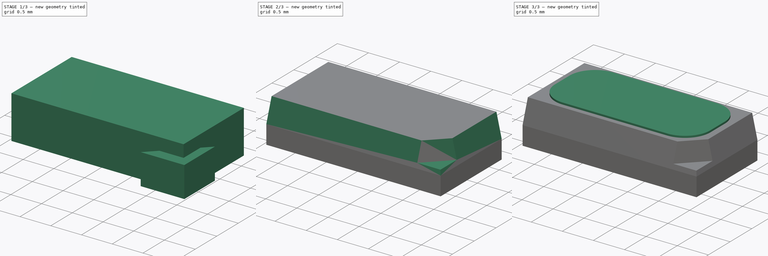
[diagram: build sequence overview — one tinted view per stage of 3, left to right]
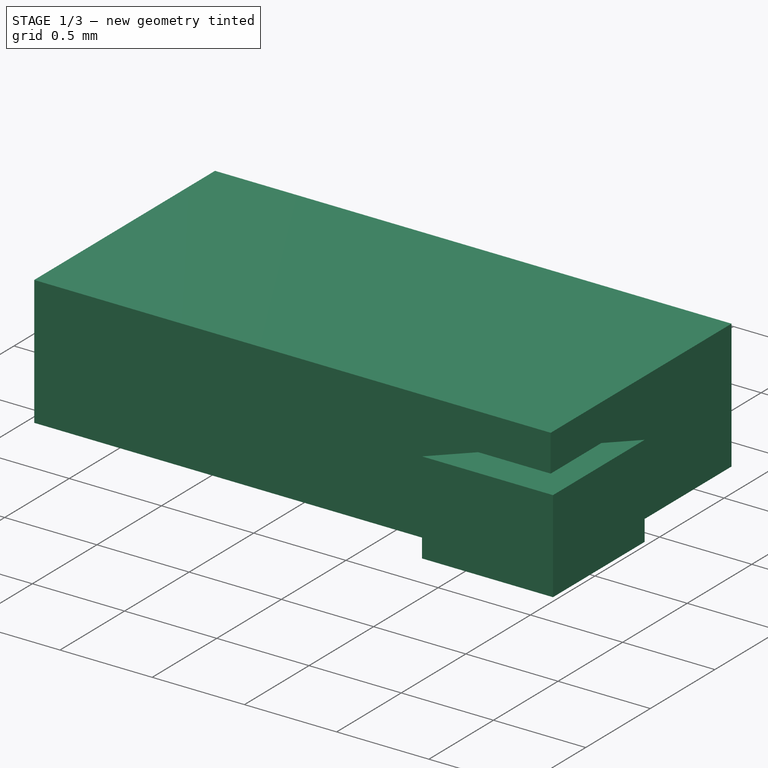
[diagram: stage 1 of 3 — iso view after this stage's code; geometry added in this stage tinted green]
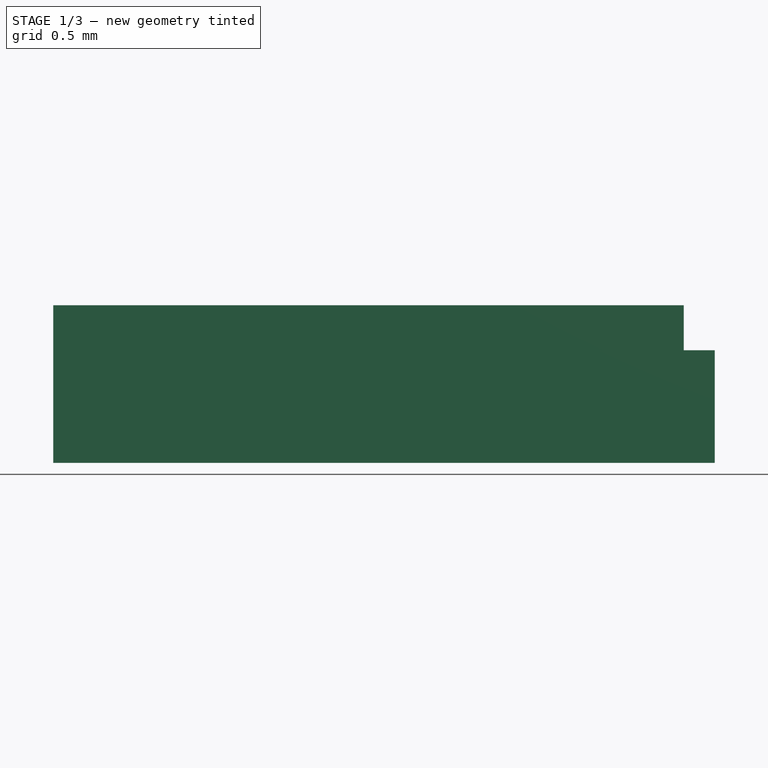
[diagram: stage 1 of 3 — front view after this stage's code; geometry added in this stage tinted green]
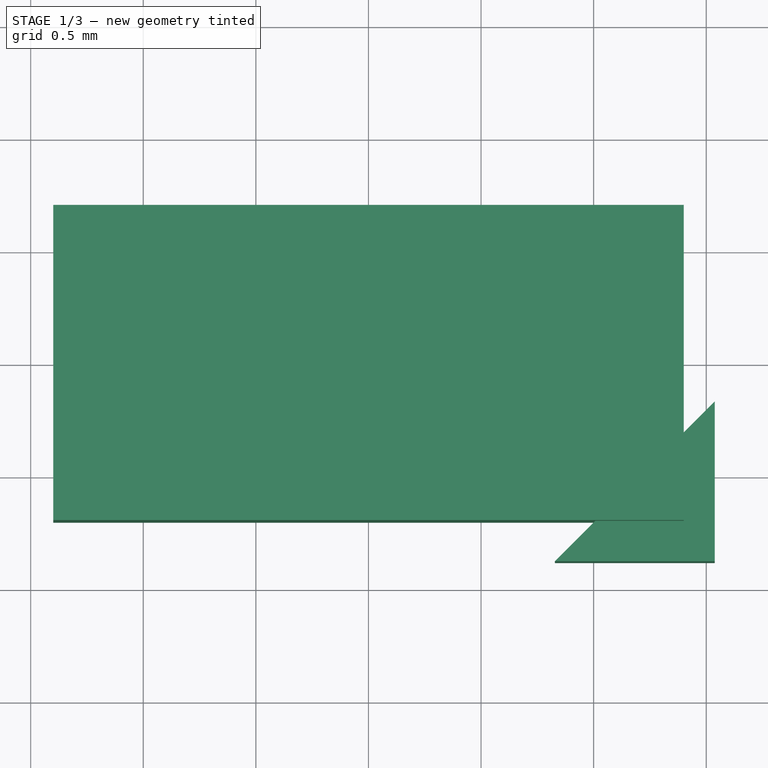
[diagram: stage 1 of 3 — top view after this stage's code; geometry added in this stage tinted green]
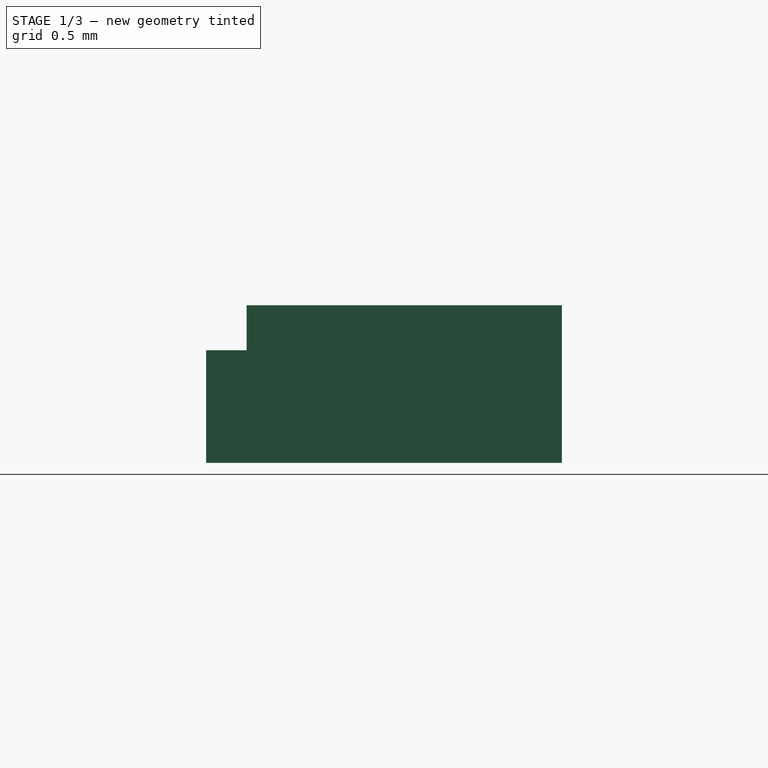
[diagram: stage 1 of 3 — right view after this stage's code; geometry added in this stage tinted green]
FCSTD DOCUMENT  (FreeCAD 0.21R33668 +26 (Git))
Label: LUXEON_3014
License: All rights reserved
LicenseURL: http://en.wikipedia.org/wiki/All_rights_reserved
objects: Sketcher::SketchObject×3, PartDesign::Pad×3, PartDesign::Body×3, PartDesign::Chamfer×1, Part::Cut×1, Part::MultiFuse×1
note: 16 computed .brp shape members not serialized (recipe doc carries the construction recipe); baked Part::Feature solids carry a one-line shape summary decoded from their .brp

FEATURE [Sketcher::SketchObject] Sketch
  FullyConstrained = true
  MapMode = 5
  Support = -> [XY_Plane]
  sketch-geometry (5):
    g0: LineSegment StartX=1.4 StartY=-0.7 StartZ=0 EndX=1.4 EndY=0.7 EndZ=0
    g1: LineSegment StartX=1.4 StartY=0.7 StartZ=0 EndX=-1.4 EndY=0.7 EndZ=0
    g2: LineSegment StartX=-1.4 StartY=0.7 StartZ=0 EndX=-1.4 EndY=-0.7 EndZ=0
    g3: LineSegment StartX=-1.4 StartY=-0.7 StartZ=0 EndX=1.4 EndY=-0.7 EndZ=0
    g4: GeomPoint X=0 Y=0 Z=0
  constraints (12):
    c: Coincident(g0,g1)
    c: Coincident(g1,g2)
    c: Coincident(g2,g3)
    c: Coincident(g3,g0)
    c: Horizontal(g1)
    c: Horizontal(g3)
    c: Vertical(g0)
    c: Vertical(g2)
    c: Symmetric(g1,g0,g4)
    c: Coincident(g4,g-1)
    c: DistanceX(g1,g1) = 2.8
    c: DistanceY(g0,g0) = 1.4
FEATURE [PartDesign::Pad] Pad
  Direction = (0,0,1)
  Length = 0.7
  Length2 = 10
  Profile = -> Sketch
  ReferenceAxis = -> Sketch [N_Axis]
  Type = 0
FEATURE [PartDesign::Body] Body
  Group = -> [Sketch,Pad,Chamfer]
  Origin = -> Origin
  Tip = -> Chamfer
FEATURE [Sketcher::SketchObject] Sketch002
  FullyConstrained = true
  MapMode = 5
  Support = -> [XY_Plane002]
  sketch-geometry (3):
    g0: LineSegment StartX=1.53812 StartY=-0.169461 StartZ=0 EndX=0.828125 EndY=-0.879461 EndZ=0
    g1: LineSegment StartX=1.53812 StartY=-0.169461 StartZ=0 EndX=1.53812 EndY=-0.879461 EndZ=0
    g2: LineSegment StartX=1.53812 StartY=-0.879461 StartZ=0 EndX=0.828125 EndY=-0.879461 EndZ=0
  constraints (9):
    c: Coincident(g1,g0)
    c: Vertical(g1)
    c: Coincident(g2,g1)
    c: Coincident(g2,g0)
    c: Horizontal(g2)
    c: Equal(g1,g2)
    c: DistanceX(g1) = 1.53812
    c: DistanceY(g1) = -0.879461
    c: DistanceY(g1,g1) = 0.71
FEATURE [PartDesign::Pad] Pad002
  Direction = (0,0,1)
  Length = 0.5
  Length2 = 10
  Profile = -> Sketch002
  ReferenceAxis = -> Sketch002 [N_Axis]
  Type = 0
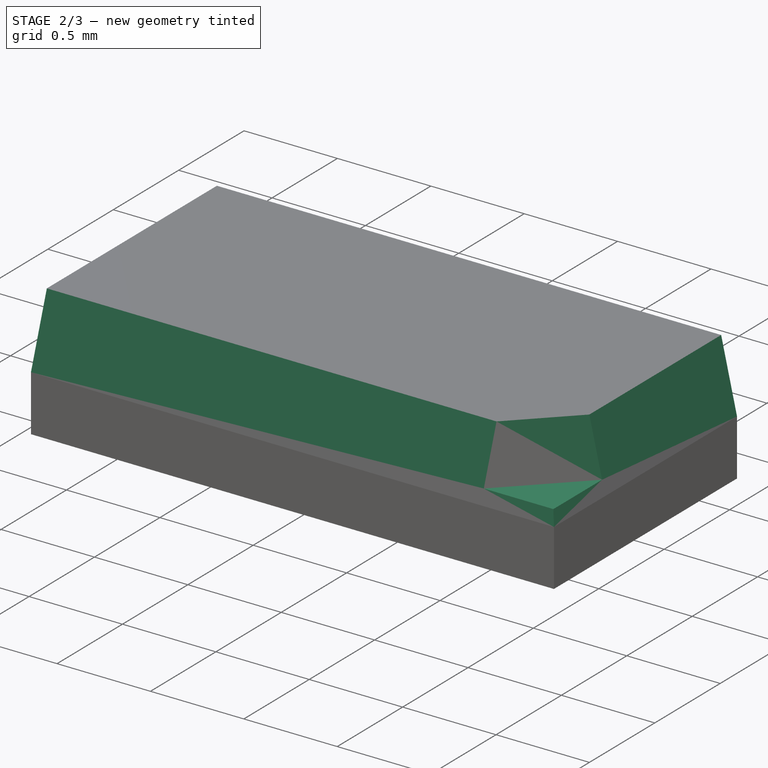
[diagram: stage 2 of 3 — iso view after this stage's code; geometry added in this stage tinted green]
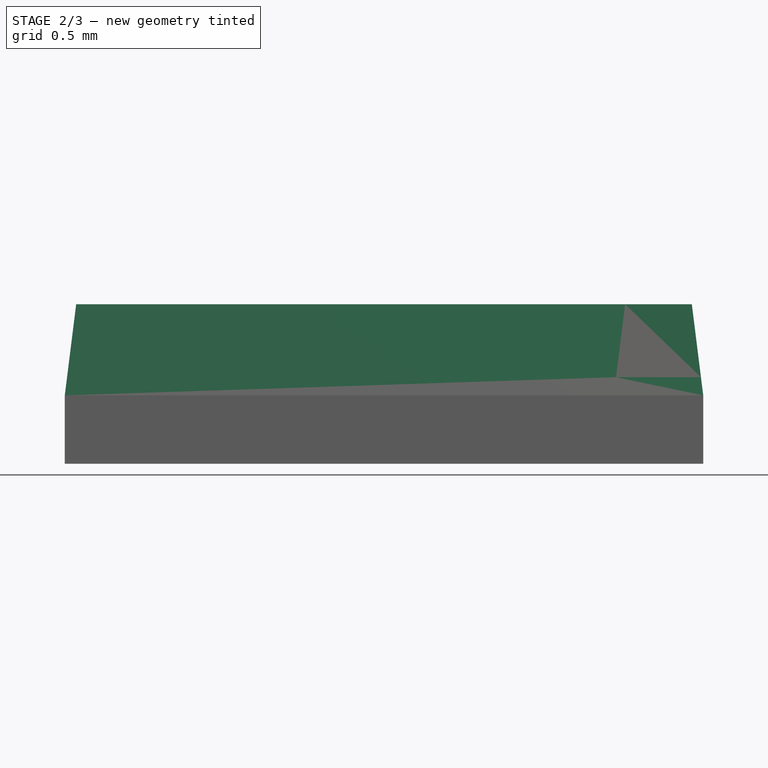
[diagram: stage 2 of 3 — front view after this stage's code; geometry added in this stage tinted green]
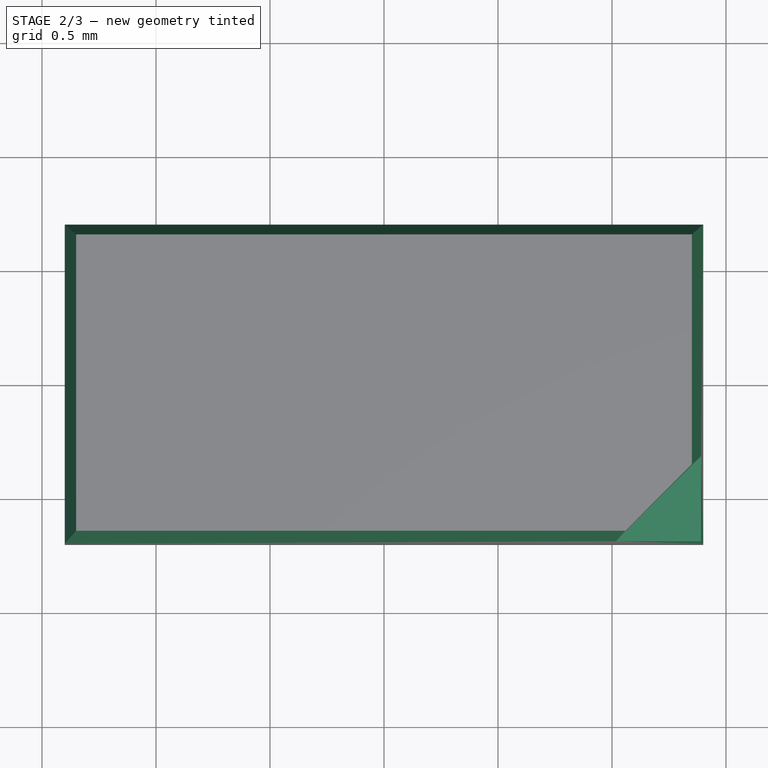
[diagram: stage 2 of 3 — top view after this stage's code; geometry added in this stage tinted green]
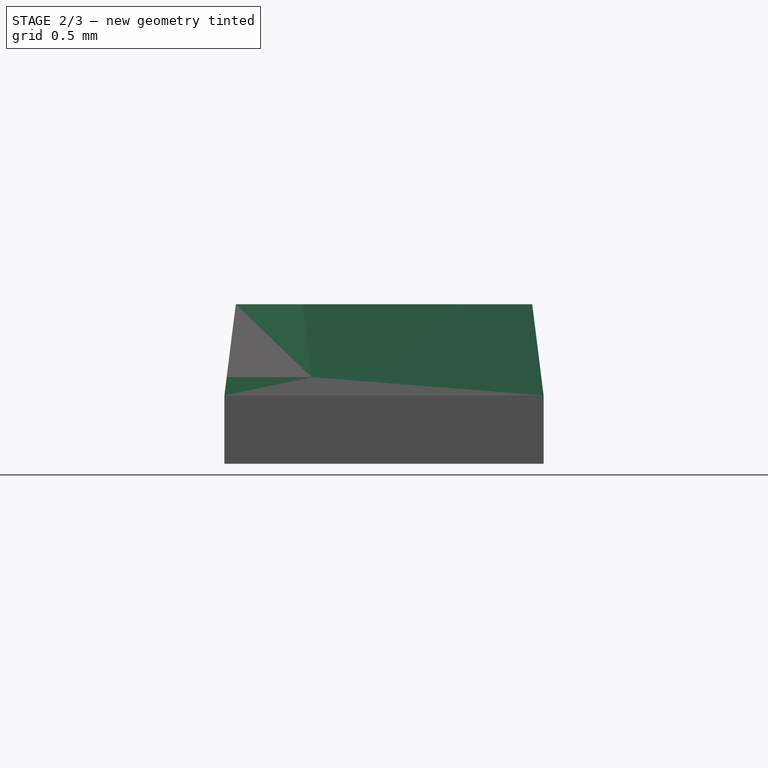
[diagram: stage 2 of 3 — right view after this stage's code; geometry added in this stage tinted green]
FEATURE [PartDesign::Body] Body001
  Group = -> [Sketch001,Pad001]
  Origin = -> Origin001
  Placement = pos=(0,0,0.63) rot=(0,0,1;0rad)
  Tip = -> Pad001
FEATURE [PartDesign::Chamfer] Chamfer
  Angle = 45
  Base = -> Pad [Face6]
  BaseFeature = -> Pad
  ChamferType = 1
  FlipDirection = false
  Size = 0.05
  Size2 = 0.4
  SupportTransform = false
  UseAllEdges = false
FEATURE [PartDesign::Body] Body002
  Group = -> [Sketch002,Pad002]
  Origin = -> Origin002
  Placement = pos=(0,0,0.38) rot=(0,0,1;0rad)
  Tip = -> Pad002
FEATURE [Part::Cut] Cut
  Base = -> Body
  Tool = -> Body002
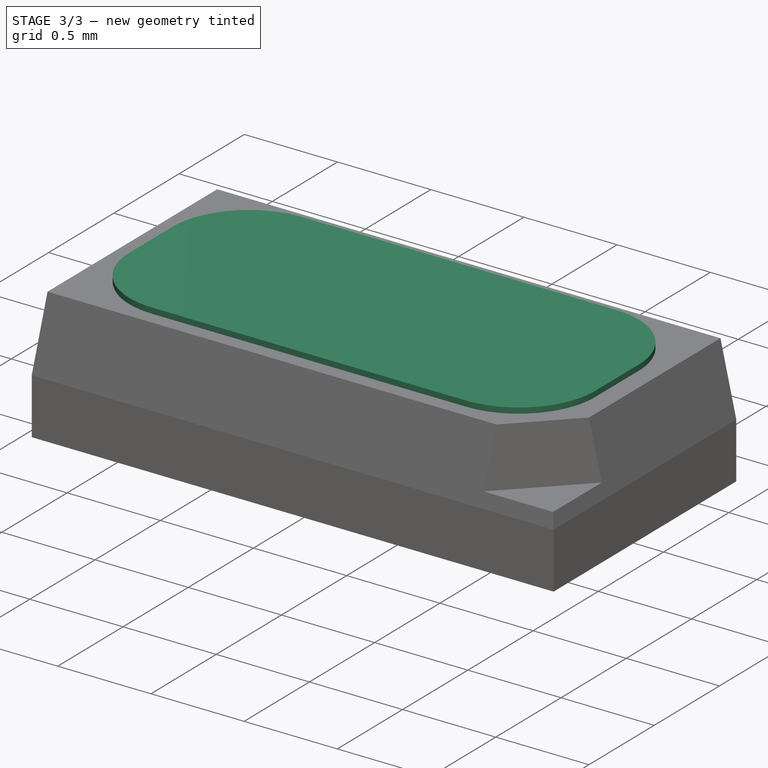
[diagram: stage 3 of 3 — iso view after this stage's code; geometry added in this stage tinted green]
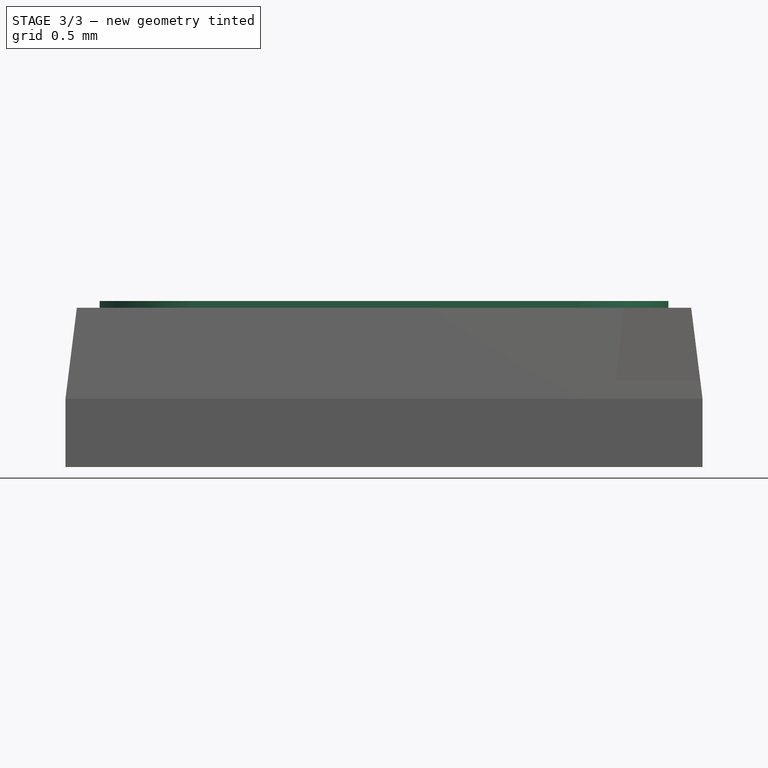
[diagram: stage 3 of 3 — front view after this stage's code; geometry added in this stage tinted green]
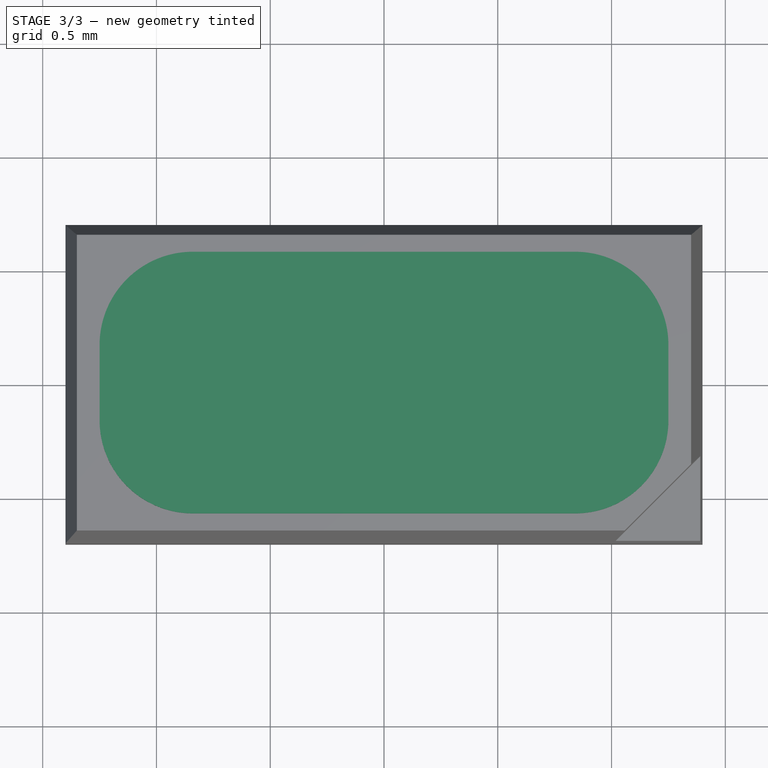
[diagram: stage 3 of 3 — top view after this stage's code; geometry added in this stage tinted green]
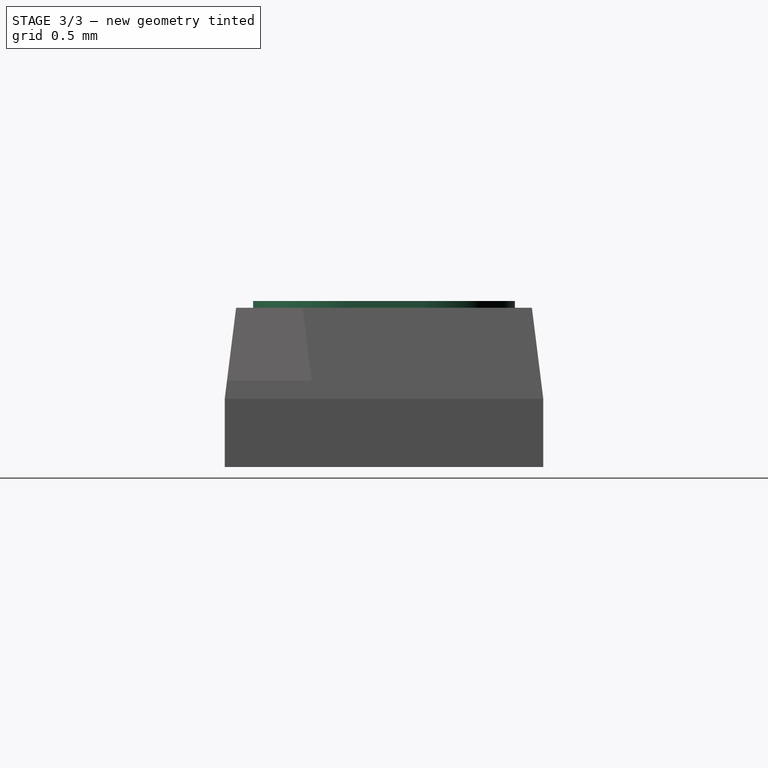
[diagram: stage 3 of 3 — right view after this stage's code; geometry added in this stage tinted green]
FEATURE [Sketcher::SketchObject] Sketch001
  FullyConstrained = true
  MapMode = 5
  Support = -> [XY_Plane001]
  sketch-geometry (13):
    g0: LineSegment StartX=1.25 StartY=-0.165 StartZ=0 EndX=1.25 EndY=0.165 EndZ=0
    g1: LineSegment StartX=0.84 StartY=0.575 StartZ=0 EndX=-0.84 EndY=0.575 EndZ=0
    g2: LineSegment StartX=-1.25 StartY=0.165 StartZ=0 EndX=-1.25 EndY=-0.165 EndZ=0
    g3: LineSegment StartX=-0.84 StartY=-0.575 StartZ=0 EndX=0.84 EndY=-0.575 EndZ=0
    g4: GeomPoint X=0 Y=0 Z=0
    g5: ArcOfCircle CenterX=-0.84 CenterY=0.165 CenterZ=0 NormalX=0 NormalY=0 NormalZ=1 AngleXU=0 Radius=0.41 StartAngle=1.5708 EndAngle=3.14159
    g6: GeomPoint X=-1.25 Y=0.575 Z=0
    g7: ArcOfCircle CenterX=0.84 CenterY=0.165 CenterZ=0 NormalX=0 NormalY=0 NormalZ=1 AngleXU=0 Radius=0.41 StartAngle=0 EndAngle=1.5708
    g8: GeomPoint X=1.25 Y=0.575 Z=0
    g9: ArcOfCircle CenterX=0.84 CenterY=-0.165 CenterZ=0 NormalX=0 NormalY=0 NormalZ=1 AngleXU=0 Radius=0.41 StartAngle=4.71239 EndAngle=6.28319
    g10: GeomPoint X=1.25 Y=-0.575 Z=0
    g11: ArcOfCircle CenterX=-0.84 CenterY=-0.165 CenterZ=0 NormalX=0 NormalY=0 NormalZ=1 AngleXU=0 Radius=0.41 StartAngle=3.14159 EndAngle=4.71239
    g12: GeomPoint X=-1.25 Y=-0.575 Z=0
  constraints (28):
    c: Horizontal(g1)
    c: Horizontal(g3)
    c: Vertical(g0)
    c: Vertical(g2)
    c: Symmetric(g6,g10,g4)
    c: Coincident(g4,g-1)
    c: DistanceX(g6,g8) = 2.5
    c: DistanceY(g10,g8) = 1.15
    c: PointOnObject(g6,g1)
    c: PointOnObject(g6,g2)
    c: Tangent(g1,g5) = -1.5708
    c: Tangent(g2,g5) = -1.5708
    c: Radius(g5) = 0.41
    c: PointOnObject(g8,g0)
    c: PointOnObject(g8,g1)
    c: Tangent(g0,g7) = -1.5708
    c: Tangent(g1,g7) = -1.5708
    c: PointOnObject(g10,g0)
    c: PointOnObject(g10,g3)
    c: Tangent(g0,g9) = -1.5708
    c: Tangent(g3,g9) = -1.5708
    c: PointOnObject(g12,g2)
    c: PointOnObject(g12,g3)
    c: Tangent(g2,g11) = -1.5708
    c: Tangent(g3,g11) = -1.5708
    c: Equal(g5,g7)
    c: Equal(g7,g9)
    c: Equal(g9,g11)
FEATURE [PartDesign::Pad] Pad001
  Direction = (0,0,1)
  Length = 0.1
  Length2 = 10
  Profile = -> Sketch001
  ReferenceAxis = -> Sketch001 [N_Axis]
  Type = 0
FEATURE [Part::MultiFuse] Fusion
  Shapes = -> [Cut,Body001]
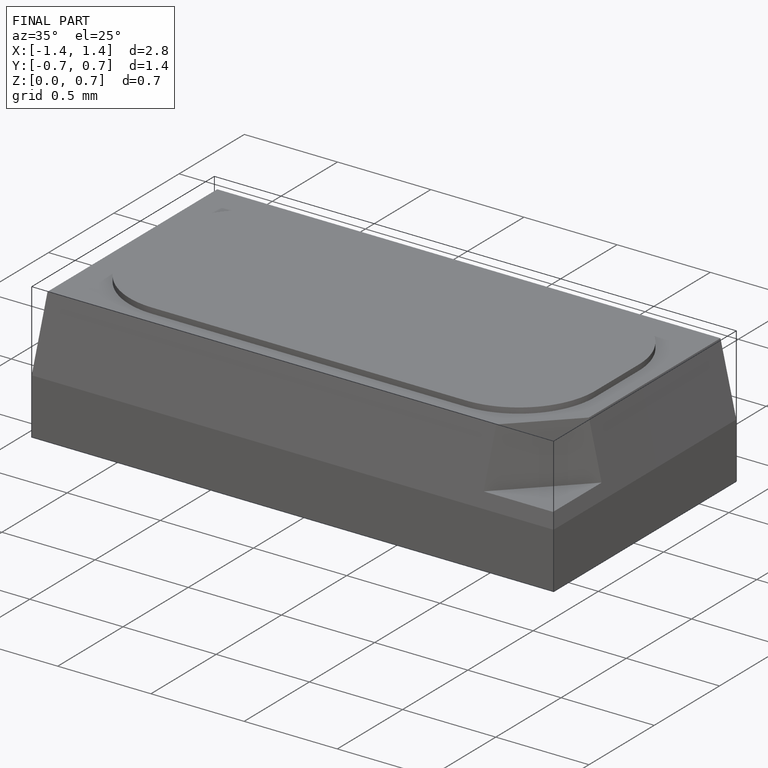
[diagram: finished part — iso view with bounding-box wireframe]
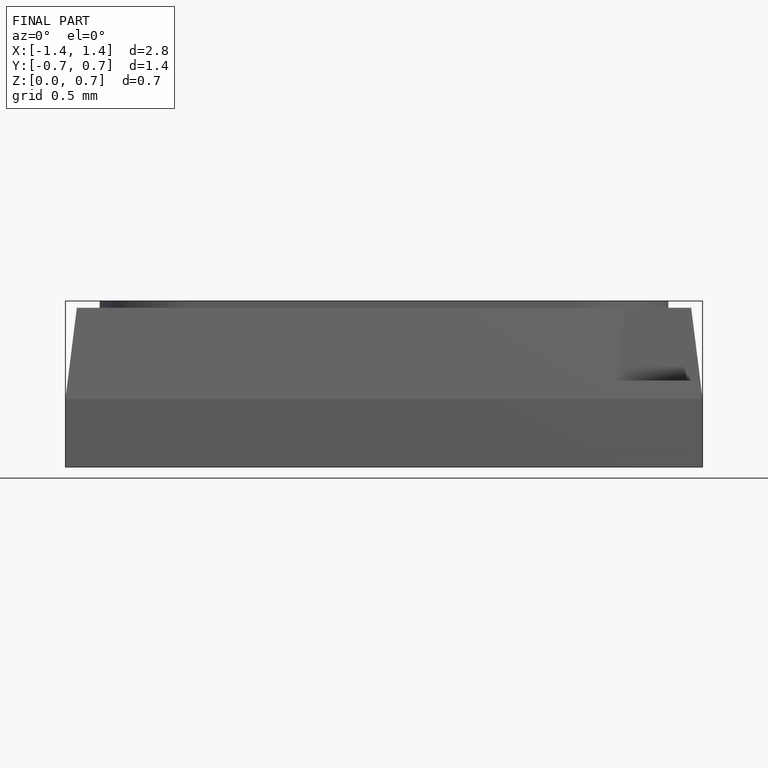
[diagram: finished part — front view with bounding-box wireframe]
